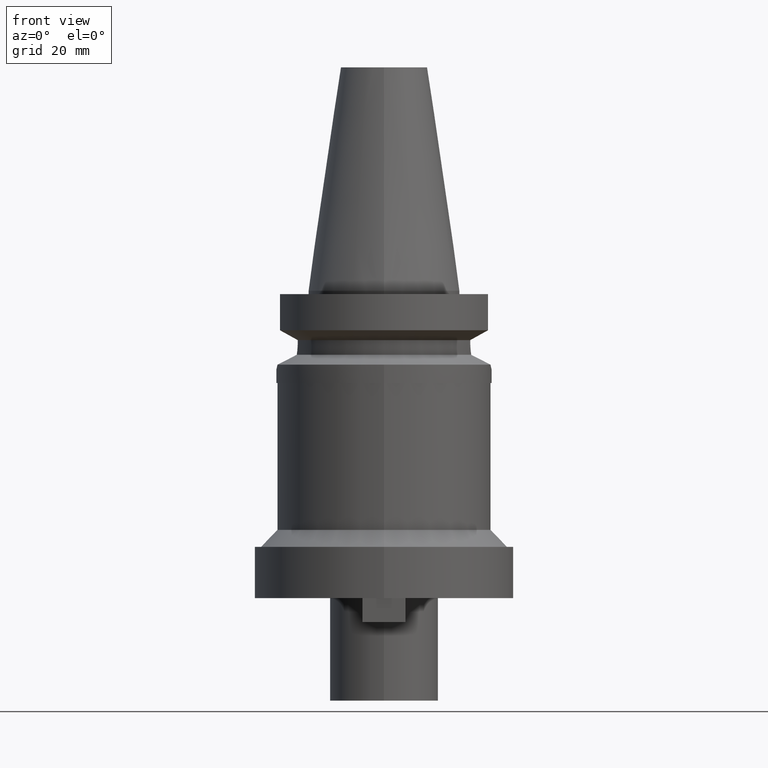
[diagram: clean part render]
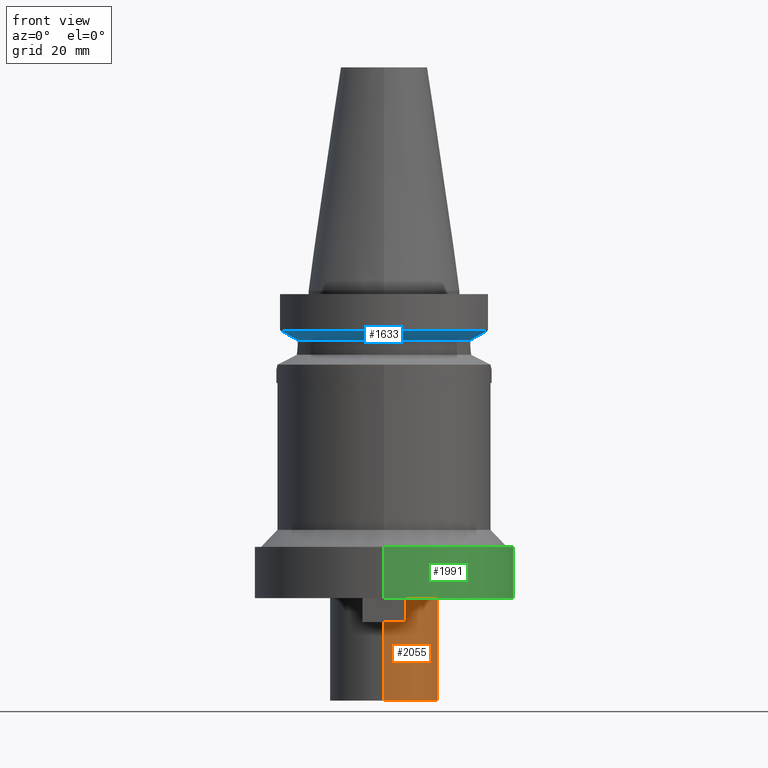
[diagram: same view with three faces highlighted in distinct colors, each labeled with its STEP entity id]
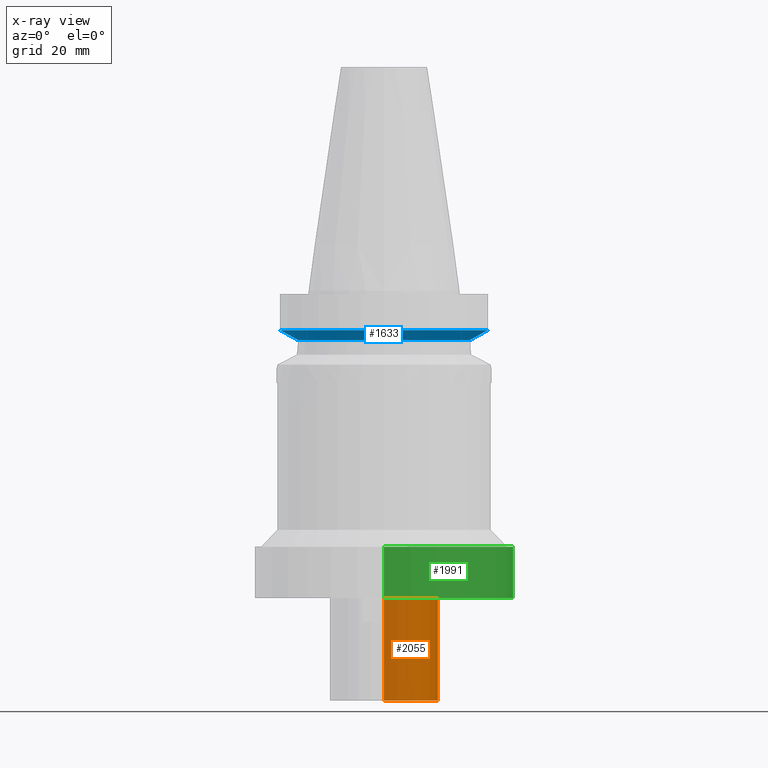
[diagram: x-ray of the same camera — body ghosted, the three highlighted faces saturated]
A machine part, front view with three faces highlighted in distinct colors.
The next image is the same camera in x-ray (body ghosted, the three faces saturated) — at least one of them is partly hidden behind the body in this view.
Their STEP definitions:

[orange] entity #2055 — the highlighted cylindrical surface (partial cylindrical patch) has radius 15.875 mm, axis along (0, 0, -1).
#772=CARTESIAN_POINT('',(0.E0,2.139090564071E-14,-9.E1));
#773=DIRECTION('',(0.E0,0.E0,-1.E0));
#774=DIRECTION('',(0.E0,1.E0,0.E0));
#775=AXIS2_PLACEMENT_3D('',#772,#773,#774);
#808=DIRECTION('',(0.E0,0.E0,-1.E0));
#809=VECTOR('',#808,3.E1);
#810=CARTESIAN_POINT('',(0.E0,-1.5875E1,-9.E1));
#811=LINE('',#810,#809);
#815=DIRECTION('',(0.E0,0.E0,-1.E0));
#816=VECTOR('',#815,3.E1);
#817=CARTESIAN_POINT('',(0.E0,1.5875E1,-9.E1));
#818=LINE('',#817,#816);
#822=CARTESIAN_POINT('',(0.E0,2.139090564071E-14,-1.2E2));
#823=DIRECTION('',(0.E0,0.E0,1.E0));
#824=DIRECTION('',(0.E0,-1.E0,0.E0));
#825=AXIS2_PLACEMENT_3D('',#822,#823,#824);
#1304=CARTESIAN_POINT('',(0.E0,-1.5875E1,-1.2E2));
#1305=CARTESIAN_POINT('',(0.E0,1.5875E1,-1.2E2));
#1306=VERTEX_POINT('',#1304);
#1307=VERTEX_POINT('',#1305);
#1308=CARTESIAN_POINT('',(0.E0,1.5875E1,-9.E1));
#1309=VERTEX_POINT('',#1308);
#1310=CARTESIAN_POINT('',(0.E0,-1.5875E1,-9.E1));
#1311=VERTEX_POINT('',#1310);
#2043=CARTESIAN_POINT('',(0.E0,2.139090564071E-14,7.467E1));
#2044=DIRECTION('',(0.E0,0.E0,-1.E0));
#2045=DIRECTION('',(0.E0,-1.E0,0.E0));
#2046=AXIS2_PLACEMENT_3D('',#2043,#2044,#2045);
#2047=CYLINDRICAL_SURFACE('',#2046,1.5875E1);
#2048=ORIENTED_EDGE('',*,*,#2033,.T.);
#2050=ORIENTED_EDGE('',*,*,#2049,.F.);
#2051=ORIENTED_EDGE('',*,*,#2036,.F.);
#2052=ORIENTED_EDGE('',*,*,#2003,.F.);
#2053=EDGE_LOOP('',(#2048,#2050,#2051,#2052));
#2054=FACE_OUTER_BOUND('',#2053,.F.);
#776=CIRCLE('',#775,1.5875E1);
#826=CIRCLE('',#825,1.5875E1);
#2003=EDGE_CURVE('',#1309,#1311,#776,.T.);
#2033=EDGE_CURVE('',#1309,#1307,#818,.T.);
#2036=EDGE_CURVE('',#1311,#1306,#811,.T.);
#2049=EDGE_CURVE('',#1306,#1307,#826,.T.);
#2055=ADVANCED_FACE('',(#2054),#2047,.T.);

[blue] entity #1633 — the highlighted conical surface has half-angle 60 deg.
#207=CARTESIAN_POINT('',(-3.045402291360E1,-8.049999278121E0,
-1.156551215448E1));
#208=CARTESIAN_POINT('',(-2.987645774154E1,-8.049999278121E0,
-1.188789690553E1));
#209=CARTESIAN_POINT('',(-2.872091199836E1,-8.049999725658E0,
-1.253193851053E1));
#210=CARTESIAN_POINT('',(-2.698538663445E1,-8.050002043015E0,
-1.349404338812E1));
#211=CARTESIAN_POINT('',(-2.582730530356E1,-8.049995415860E0,
-1.413348340828E1));
#212=CARTESIAN_POINT('',(-2.524772413119E1,-8.049995415860E0,
-1.445229202742E1));
#251=CARTESIAN_POINT('',(0.E0,1.065333950388E-14,-1.156550565267E1));
#252=DIRECTION('',(0.E0,0.E0,1.E0));
#253=DIRECTION('',(-9.667943721520E-1,-2.555555555555E-1,0.E0));
#254=AXIS2_PLACEMENT_3D('',#251,#252,#253);
#259=CARTESIAN_POINT('',(0.E0,1.065333950388E-14,-1.156550565267E1));
#260=DIRECTION('',(0.E0,0.E0,1.E0));
#261=DIRECTION('',(0.E0,-1.E0,0.E0));
#262=AXIS2_PLACEMENT_3D('',#259,#260,#261);
#267=CARTESIAN_POINT('',(0.E0,1.065333950388E-14,-1.445225699861E1));
#268=DIRECTION('',(0.E0,0.E0,-1.E0));
#269=DIRECTION('',(9.527442516822E-1,-3.037735849057E-1,0.E0));
#270=AXIS2_PLACEMENT_3D('',#267,#268,#269);
#275=CARTESIAN_POINT('',(0.E0,1.065333950388E-14,-1.445225699861E1));
#276=DIRECTION('',(0.E0,0.E0,-1.E0));
#277=DIRECTION('',(0.E0,-1.E0,0.E0));
#278=AXIS2_PLACEMENT_3D('',#275,#276,#277);
#297=CARTESIAN_POINT('',(2.524772216364E1,-8.050001586820E0,-1.445224487391E1));
#298=CARTESIAN_POINT('',(2.582727361366E1,-8.050001586820E0,-1.413345267858E1));
#299=CARTESIAN_POINT('',(2.698547395766E1,-8.049999811991E0,-1.349419207465E1));
#300=CARTESIAN_POINT('',(2.872100163932E1,-8.049998277800E0,-1.253209185136E1));
#301=CARTESIAN_POINT('',(2.987642830970E1,-8.050004143805E0,-1.188786874756E1));
#302=CARTESIAN_POINT('',(3.045402162744E1,-8.050004143805E0,-1.156546832704E1));
#1387=CARTESIAN_POINT('',(-2.524772413119E1,-8.049995415860E0,
-1.445229202742E1));
#1388=VERTEX_POINT('',#1387);
#1389=CARTESIAN_POINT('',(2.524772266958E1,-8.05E0,-1.445225699861E1));
#1390=CARTESIAN_POINT('',(0.E0,-2.65E1,-1.445225699861E1));
#1391=VERTEX_POINT('',#1389);
#1392=VERTEX_POINT('',#1390);
#1403=CARTESIAN_POINT('',(-3.045402291360E1,-8.049999278121E0,
-1.156551215448E1));
#1404=VERTEX_POINT('',#1403);
#1430=CARTESIAN_POINT('',(0.E0,-3.15E1,-1.156550565267E1));
#1431=CARTESIAN_POINT('',(3.045402272279E1,-8.049999999999E0,
-1.156550565267E1));
#1432=VERTEX_POINT('',#1430);
#1433=VERTEX_POINT('',#1431);
#1617=CARTESIAN_POINT('',(0.E0,1.065333950388E-14,-1.300888132564E1));
#1618=DIRECTION('',(0.E0,0.E0,1.E0));
#1619=DIRECTION('',(0.E0,1.E0,0.E0));
#1620=AXIS2_PLACEMENT_3D('',#1617,#1618,#1619);
#1621=CONICAL_SURFACE('',#1620,2.9E1,6.E1);
#1622=ORIENTED_EDGE('',*,*,#1589,.F.);
#1624=ORIENTED_EDGE('',*,*,#1623,.T.);
#1626=ORIENTED_EDGE('',*,*,#1625,.T.);
#1628=ORIENTED_EDGE('',*,*,#1627,.F.);
#1629=ORIENTED_EDGE('',*,*,#1602,.T.);
#1630=ORIENTED_EDGE('',*,*,#1600,.T.);
#1631=EDGE_LOOP('',(#1622,#1624,#1626,#1628,#1629,#1630));
#1632=FACE_OUTER_BOUND('',#1631,.F.);
#213=B_SPLINE_CURVE_WITH_KNOTS('',3,(#207,#208,#209,#210,#211,#212),
.UNSPECIFIED.,.F.,.F.,(4,1,1,4),(0.E0,3.333333333333E-1,6.666666666667E-1,1.E0),
.UNSPECIFIED.);
#255=CIRCLE('',#254,3.15E1);
#263=CIRCLE('',#262,3.15E1);
#271=CIRCLE('',#270,2.65E1);
#279=CIRCLE('',#278,2.65E1);
#303=B_SPLINE_CURVE_WITH_KNOTS('',3,(#297,#298,#299,#300,#301,#302),
.UNSPECIFIED.,.F.,.F.,(4,1,1,4),(0.E0,3.333333333333E-1,6.666666666667E-1,1.E0),
.UNSPECIFIED.);
#1589=EDGE_CURVE('',#1404,#1388,#213,.T.);
#1600=EDGE_CURVE('',#1392,#1388,#279,.T.);
#1602=EDGE_CURVE('',#1391,#1392,#271,.T.);
#1623=EDGE_CURVE('',#1404,#1432,#255,.T.);
#1625=EDGE_CURVE('',#1432,#1433,#263,.T.);
#1627=EDGE_CURVE('',#1391,#1433,#303,.T.);
#1633=ADVANCED_FACE('',(#1632),#1621,.T.);

[green] entity #1991 — the highlighted cylindrical surface (partial cylindrical patch) has radius 38 mm, axis along (0, 0, -1).
#710=CARTESIAN_POINT('',(0.E0,2.139090564071E-14,-7.5E1));
#711=DIRECTION('',(0.E0,0.E0,-1.E0));
#712=DIRECTION('',(0.E0,1.E0,0.E0));
#713=AXIS2_PLACEMENT_3D('',#710,#711,#712);
#734=DIRECTION('',(0.E0,0.E0,-1.E0));
#735=VECTOR('',#734,1.5E1);
#736=CARTESIAN_POINT('',(0.E0,-3.8E1,-7.5E1));
#737=LINE('',#736,#735);
#741=DIRECTION('',(0.E0,0.E0,-1.E0));
#742=VECTOR('',#741,1.5E1);
#743=CARTESIAN_POINT('',(0.E0,3.8E1,-7.5E1));
#744=LINE('',#743,#742);
#748=CARTESIAN_POINT('',(0.E0,2.139090564071E-14,-9.E1));
#749=DIRECTION('',(0.E0,0.E0,1.E0));
#750=DIRECTION('',(0.E0,-1.E0,0.E0));
#751=AXIS2_PLACEMENT_3D('',#748,#749,#750);
#1312=CARTESIAN_POINT('',(0.E0,-3.8E1,-9.E1));
#1313=CARTESIAN_POINT('',(0.E0,3.8E1,-9.E1));
#1314=VERTEX_POINT('',#1312);
#1315=VERTEX_POINT('',#1313);
#1332=CARTESIAN_POINT('',(0.E0,3.8E1,-7.5E1));
#1333=VERTEX_POINT('',#1332);
#1334=CARTESIAN_POINT('',(0.E0,-3.8E1,-7.5E1));
#1335=VERTEX_POINT('',#1334);
#1979=CARTESIAN_POINT('',(0.E0,2.139090564071E-14,7.467E1));
#1980=DIRECTION('',(0.E0,0.E0,-1.E0));
#1981=DIRECTION('',(0.E0,-1.E0,0.E0));
#1982=AXIS2_PLACEMENT_3D('',#1979,#1980,#1981);
#1983=CYLINDRICAL_SURFACE('',#1982,3.8E1);
#1984=ORIENTED_EDGE('',*,*,#1969,.T.);
#1986=ORIENTED_EDGE('',*,*,#1985,.F.);
#1987=ORIENTED_EDGE('',*,*,#1972,.F.);
#1988=ORIENTED_EDGE('',*,*,#1955,.F.);
#1989=EDGE_LOOP('',(#1984,#1986,#1987,#1988));
#1990=FACE_OUTER_BOUND('',#1989,.F.);
#714=CIRCLE('',#713,3.8E1);
#752=CIRCLE('',#751,3.8E1);
#1955=EDGE_CURVE('',#1333,#1335,#714,.T.);
#1969=EDGE_CURVE('',#1333,#1315,#744,.T.);
#1972=EDGE_CURVE('',#1335,#1314,#737,.T.);
#1985=EDGE_CURVE('',#1314,#1315,#752,.T.);
#1991=ADVANCED_FACE('',(#1990),#1983,.T.);